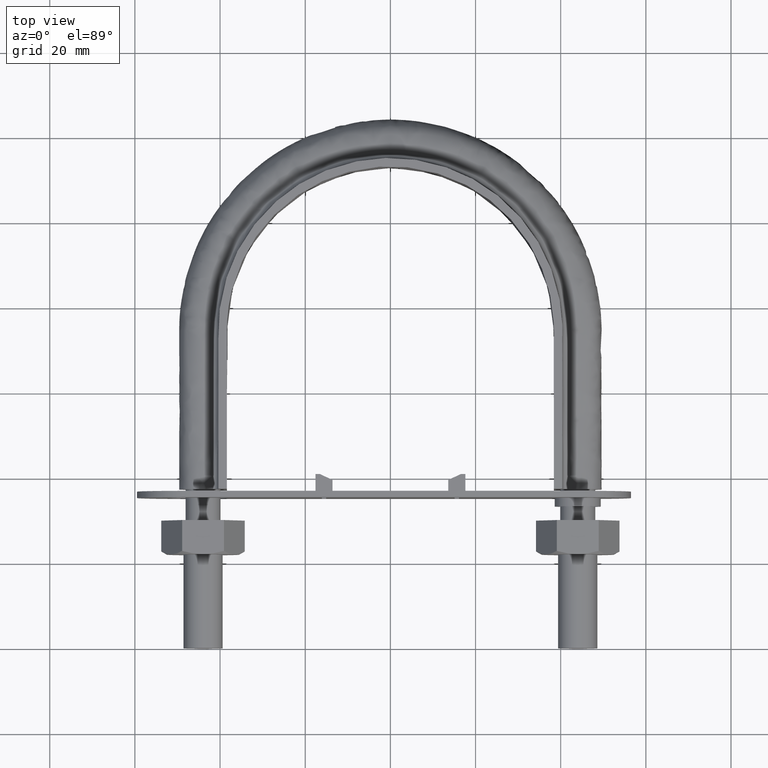
[diagram: clean part render]
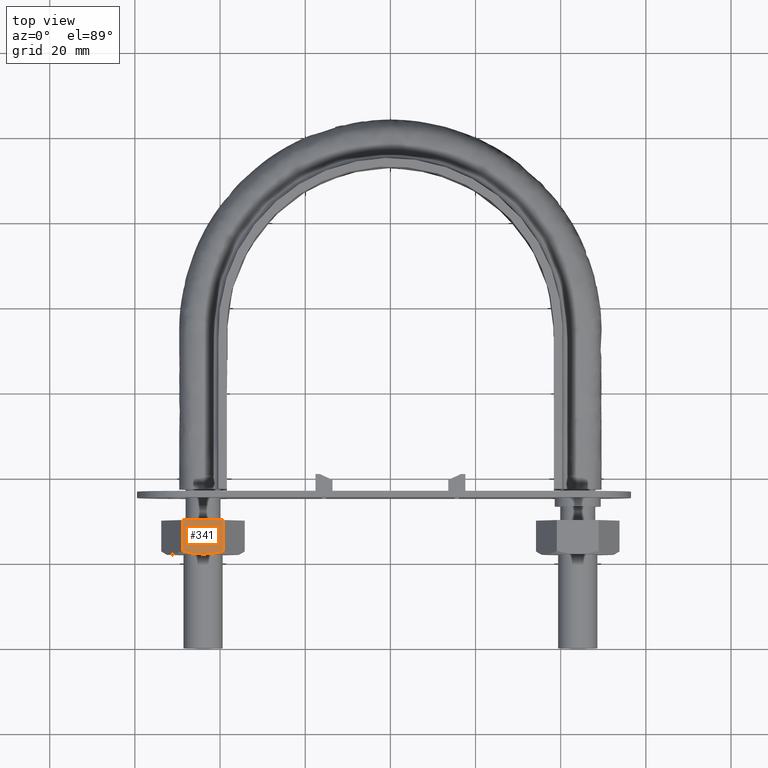
[diagram: same view with one face highlighted and labeled with its STEP entity id]
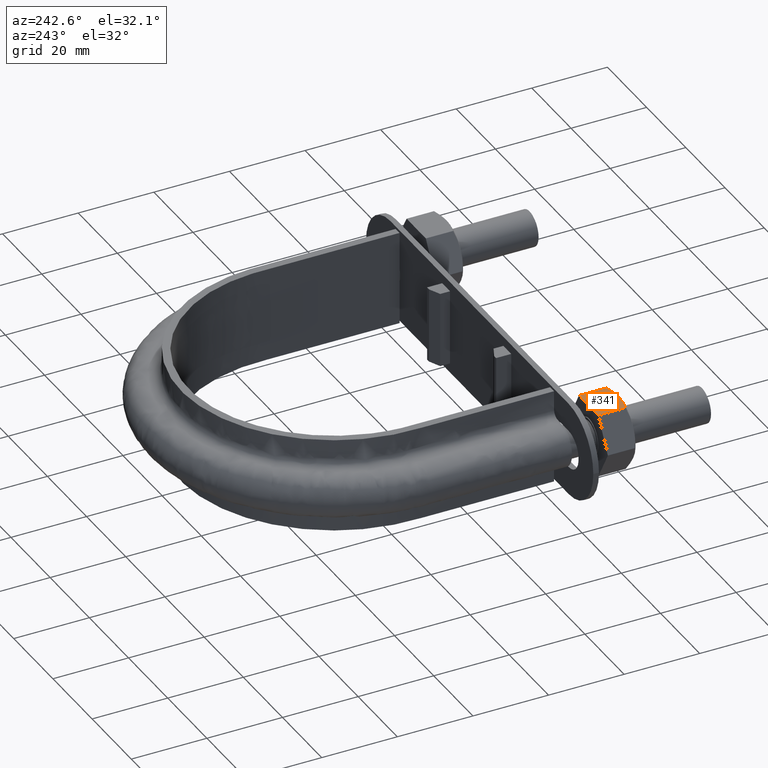
[diagram: same view with one face highlighted and labeled with its STEP entity id]
A machine part, top view. The second image highlights one B-rep face of the part: STEP entity #341.
A second angle (auxiliary view) of the same face is appended — the face is thin or edge-on in the first view.
In plain terms, the highlighted planar face has unit normal (-0, 0, -1).
Its self-contained STEP definition (entity closure, byte-faithful):
#341 = ADVANCED_FACE( '', ( #552 ), #553, .F. );
#552 = FACE_OUTER_BOUND( '', #1634, .T. );
#553 = PLANE( '', #1635 );
#1634 = EDGE_LOOP( '', ( #2261, #2262, #2263, #2264, #2265 ) );
#1635 = AXIS2_PLACEMENT_3D( '', #2266, #2267, #2268 );
#2261 = ORIENTED_EDGE( '', *, *, #2715, .F. );
#2262 = ORIENTED_EDGE( '', *, *, #2682, .F. );
#2263 = ORIENTED_EDGE( '', *, *, #2716, .F. );
#2264 = ORIENTED_EDGE( '', *, *, #2699, .F. );
#2265 = ORIENTED_EDGE( '', *, *, #2710, .F. );
#2266 = CARTESIAN_POINT( '', ( -48.9074772881081, 30.0000000000000, 8.50000000000122 ) );
#2267 = DIRECTION( '', ( -2.47579734491410E-013, 6.12303176911795E-017, -1.00000000000000 ) );
#2268 = DIRECTION( '', ( -2.44921270764475E-016, -1.00000000000000, -6.12303176911189E-017 ) );
#2682 = EDGE_CURVE( '', #3011, #3014, #3015, .T. );
#2699 = EDGE_CURVE( '', #3043, #3045, #3046, .T. );
#2710 = EDGE_CURVE( '', #3064, #3043, #3066, .T. );
#2715 = EDGE_CURVE( '', #3014, #3064, #3073, .T. );
#2716 = EDGE_CURVE( '', #3045, #3011, #3074, .F. );
#3011 = VERTEX_POINT( '', #3740 );
#3014 = VERTEX_POINT( '', #3743 );
#3015 = B_SPLINE_CURVE_WITH_KNOTS( '', 3, ( #3744, #3745, #3746, #3747, #3748, #3749 ), .UNSPECIFIED., .F., .F., ( 4, 2, 4 ), ( 0.0107224888714687, 0.0132032657403415, 0.0156840426092143 ), .UNSPECIFIED. );
#3043 = VERTEX_POINT( '', #3799 );
#3045 = VERTEX_POINT( '', #3801 );
#3046 = LINE( '', #3802, #3803 );
#3064 = VERTEX_POINT( '', #3825 );
#3066 = LINE( '', #3827, #3828 );
#3073 = B_SPLINE_CURVE_WITH_KNOTS( '', 3, ( #3848, #3849, #3850, #3851, #3852, #3853 ), .UNSPECIFIED., .F., .F., ( 4, 2, 4 ), ( 0.0156840426092143, 0.0181633795370664, 0.0206427164649185 ), .UNSPECIFIED. );
#3074 = LINE( '', #3854, #3855 );
#3740 = CARTESIAN_POINT( '', ( -39.1225006406966, 22.7505553499489, 8.49999999999880 ) );
#3743 = CARTESIAN_POINT( '', ( -43.9999999999979, 22.0000000000026, 8.50000000000000 ) );
#3744 = CARTESIAN_POINT( '', ( -39.1225006406967, 22.7505553499498, 8.49999999999879 ) );
#3745 = CARTESIAN_POINT( '', ( -39.9171260670583, 22.5222200930448, 8.49999999999899 ) );
#3746 = CARTESIAN_POINT( '', ( -40.7187973776752, 22.3336547117208, 8.49999999999919 ) );
#3747 = CARTESIAN_POINT( '', ( -42.3426188305525, 22.0721149177853, 8.49999999999959 ) );
#3748 = CARTESIAN_POINT( '', ( -43.1649212463868, 22.0000000000037, 8.49999999999979 ) );
#3749 = CARTESIAN_POINT( '', ( -43.9999999999981, 22.0000000000037, 8.50000000000000 ) );
#3799 = CARTESIAN_POINT( '', ( -48.8774993592992, 30.0000000000000, 8.50000000000121 ) );
#3801 = CARTESIAN_POINT( '', ( -39.1225006406966, 30.0000000000000, 8.49999999999880 ) );
#3802 = CARTESIAN_POINT( '', ( -53.7999999999947, 30.0000000000000, 8.50000000000243 ) );
#3803 = VECTOR( '', #4306, 999.999999999891 );
#3825 = CARTESIAN_POINT( '', ( -48.8774993592992, 22.7505553499489, 8.50000000000121 ) );
#3827 = CARTESIAN_POINT( '', ( -48.8774993592992, 30.0000000000000, 8.50000000000121 ) );
#3828 = VECTOR( '', #4329, 999.999999999891 );
#3848 = CARTESIAN_POINT( '', ( -43.9999999999981, 22.0000000000037, 8.50000000000000 ) );
#3849 = CARTESIAN_POINT( '', ( -44.8345940408696, 22.0000000000037, 8.50000000000021 ) );
#3850 = CARTESIAN_POINT( '', ( -45.6590982731987, 22.0723104611299, 8.50000000000042 ) );
#3851 = CARTESIAN_POINT( '', ( -47.2828074229562, 22.3339943747768, 8.50000000000081 ) );
#3852 = CARTESIAN_POINT( '', ( -48.0838578122236, 22.5225028103127, 8.50000000000101 ) );
#3853 = CARTESIAN_POINT( '', ( -48.8774993592990, 22.7505553499498, 8.50000000000121 ) );
#3854 = CARTESIAN_POINT( '', ( -39.1225006406966, 30.0000000000000, 8.49999999999880 ) );
#3855 = VECTOR( '', #4334, 999.999999999891 );
#4306 = DIRECTION( '', ( 1.00000000000000, -2.44921270764460E-016, -2.47579734491410E-013 ) );
#4329 = DIRECTION( '', ( 2.44921270764475E-016, 1.00000000000000, 6.12303176911189E-017 ) );
#4334 = DIRECTION( '', ( 2.44921270764475E-016, 1.00000000000000, 6.12303176911189E-017 ) );